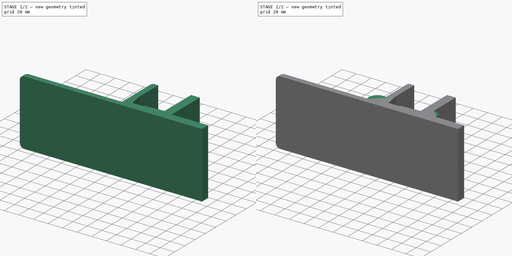
[diagram: build sequence overview — one tinted view per stage of 2, left to right]
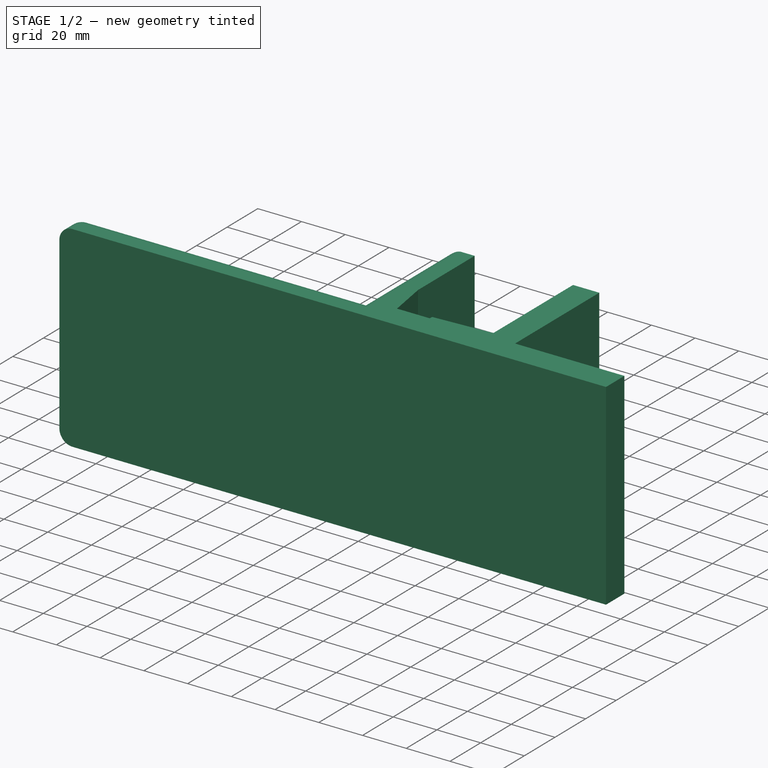
[diagram: stage 1 of 2 — iso view after this stage's code; geometry added in this stage tinted green]
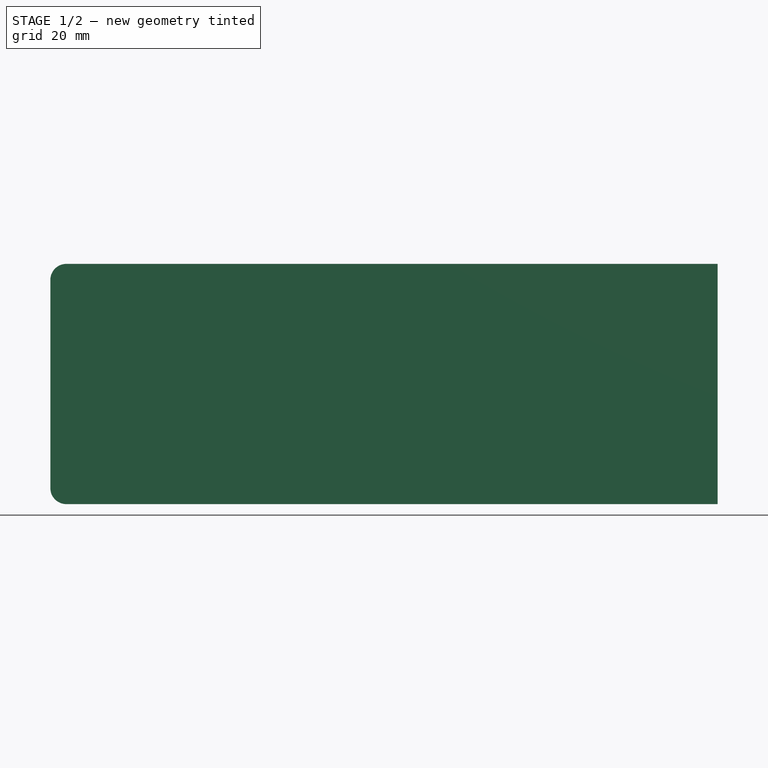
[diagram: stage 1 of 2 — front view after this stage's code; geometry added in this stage tinted green]
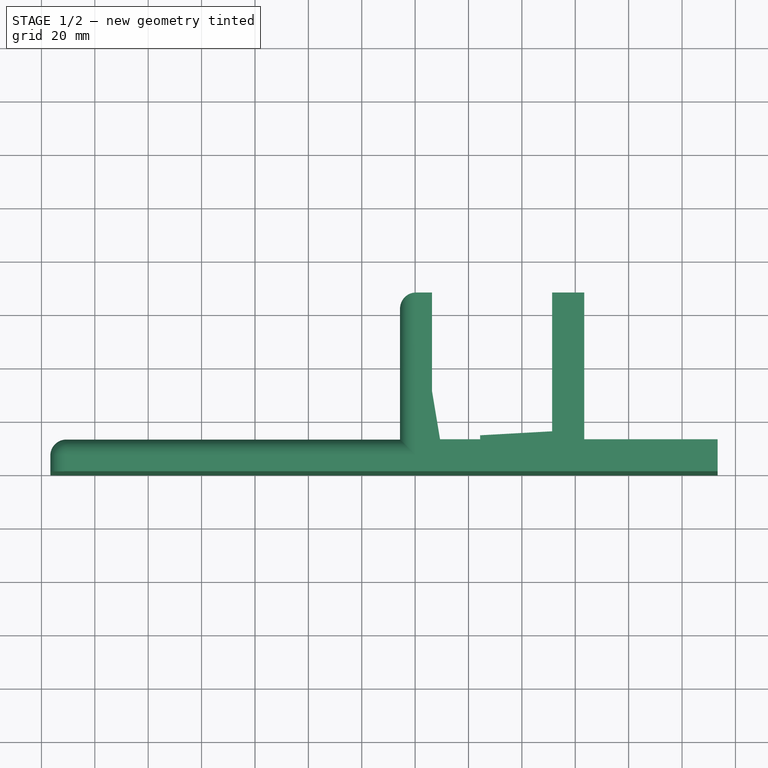
[diagram: stage 1 of 2 — top view after this stage's code; geometry added in this stage tinted green]
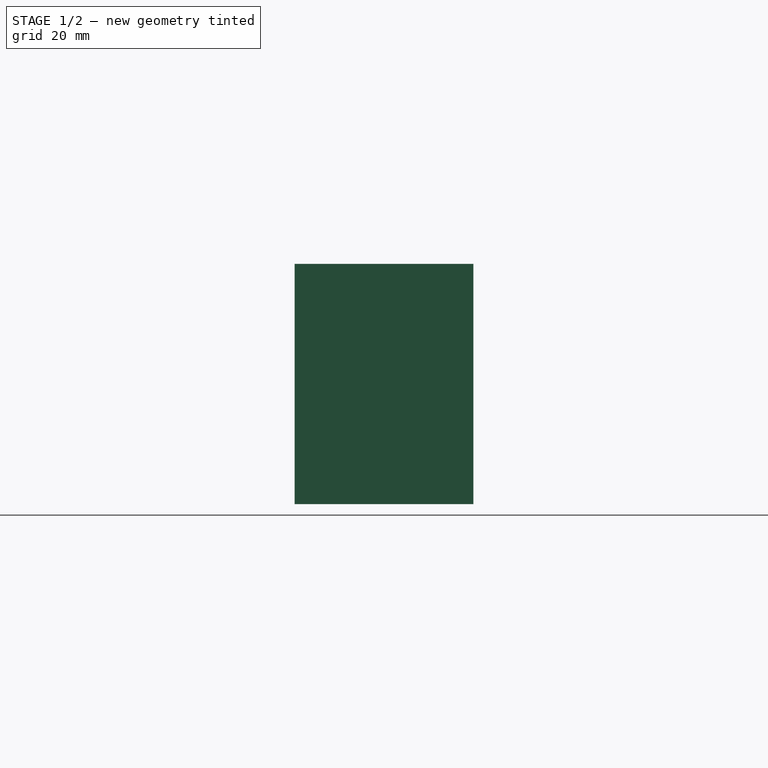
[diagram: stage 1 of 2 — right view after this stage's code; geometry added in this stage tinted green]
FCSTD DOCUMENT  (FreeCAD 1.0R39285 (Git))
Label: tv-legs
License: All rights reserved
LicenseURL: https://en.wikipedia.org/wiki/All_rights_reserved
objects: PartDesign::AdditiveCylinder×2, App::VarSet×1, Sketcher::SketchObject×1, PartDesign::Pad×1, PartDesign::Fillet×1, PartDesign::Body×1
note: 15 computed .brp shape members not serialized (recipe doc carries the construction recipe); baked Part::Feature solids carry a one-line shape summary decoded from their .brp

FEATURE [App::VarSet] VarSet
  Base_HolderHeight = 55
  Base_LegLength = 250
  Base_LegThickness = 12
  Base_RearHeelLength = 50
  Base_TvDepth = 45
FEATURE [Sketcher::SketchObject] Sketch
  ArcFitTolerance = 1e-06
  AttachmentSupport = -> [XY_Plane]
  FullyConstrained = false
  MakeInternals = false
  MapMode = 5
  expr: Constraints[15] = VarSet.Base_HolderHeight
  expr: Constraints[23] = VarSet.Base_LegThickness
  expr: Constraints[24] = VarSet.Base_LegThickness
  expr: Constraints[28] = VarSet.Base_TvDepth
  expr: Constraints[29] = VarSet.Base_RearHeelLength
  expr: Constraints[2] = VarSet.Base_LegLength
  expr: Constraints[7] = VarSet.Base_LegThickness
  sketch-geometry (19):
    g0: LineSegment StartX=-136.66 StartY=0 StartZ=0 EndX=113.34 EndY=0 EndZ=0
    g1: LineSegment StartX=-136.66 StartY=0 StartZ=0 EndX=-136.66 EndY=12 EndZ=0
    g2: LineSegment StartX=113.34 StartY=0 StartZ=0 EndX=113.34 EndY=12 EndZ=0
    g3: LineSegment StartX=-136.66 StartY=12 StartZ=0 EndX=-5.65961 EndY=12 EndZ=0
    g4: LineSegment StartX=6.34039 StartY=30 StartZ=0 EndX=6.34039 EndY=67 EndZ=0
    g5: LineSegment StartX=51.3404 StartY=15 StartZ=0 EndX=51.3404 EndY=67 EndZ=0
    g6: LineSegment StartX=-5.65961 StartY=67 StartZ=0 EndX=-5.65961 EndY=12 EndZ=0
    g7: LineSegment StartX=63.3404 StartY=67 StartZ=0 EndX=63.3404 EndY=12 EndZ=0
    g8: LineSegment StartX=-5.65961 StartY=67 StartZ=0 EndX=6.34039 EndY=67 EndZ=0
    g9: LineSegment StartX=51.3404 StartY=67 StartZ=0 EndX=63.3404 EndY=67 EndZ=0
    g10: LineSegment StartX=63.3404 StartY=12 StartZ=0 EndX=113.34 EndY=12 EndZ=0
    g11: LineSegment StartX=24.3404 StartY=12 StartZ=0 EndX=24.3404 EndY=13.5 EndZ=0
    g12: LineSegment [constr] StartX=6.34039 StartY=12 StartZ=0 EndX=63.3404 EndY=12 EndZ=0
    g13: LineSegment [constr] StartX=51.3404 StartY=12 StartZ=0 EndX=51.3404 EndY=15 EndZ=0
    g14: LineSegment StartX=24.3404 StartY=13.5 StartZ=0 EndX=51.3404 EndY=15 EndZ=0
    g15: LineSegment [constr] StartX=6.34039 StartY=30 StartZ=0 EndX=6.34039 EndY=12 EndZ=0
    g16: GeomPoint [constr] X=9.34039 Y=12 Z=0
    g17: LineSegment StartX=24.3404 StartY=12 StartZ=0 EndX=9.34039 EndY=12 EndZ=0
    g18: LineSegment StartX=9.34039 StartY=12 StartZ=0 EndX=6.34039 EndY=30 EndZ=0
  constraints (51):
    c: PointOnObject(g0,g-1)
    c: PointOnObject(g0,g-1)
    c: DistanceX(g0,g0) = 250
    c: Coincident(g1,g0)
    c: Vertical(g1)
    c: Coincident(g2,g0)
    c: Vertical(g2)
    c: Distance(g1,g1) = 12
    c: Equal(g2,g1)
    c: Coincident(g3,g1)
    c: Horizontal(g3)
    c: Vertical(g4)
    c: Vertical(g5)
    c: Vertical(g6)
    c: Vertical(g7)
    c: DistanceY(g6,g6) = 55
    c: Coincident(g8,g6)
    c: Horizontal(g8)
    c: Coincident(g9,g5)
    c: Horizontal(g9)
    c: Coincident(g8,g4)
    c: Coincident(g9,g7)
    c: Coincident(g3,g6)
    c: Distance(g8,g8) = 12
    c: Distance(g9,g9) = 12
    c: Coincident(g10,g7)
    c: Horizontal(g10)
    c: Coincident(g10,g2)
    c: Distance(g5,g4) = 45
    c: DistanceX(g10,g10) = 50
    c: Distance(g11) = 1.5
    c: Vertical(g11)
    c: Coincident(g12,g7)
    c: Distance(g13) = 3
    c: PointOnObject(g13,g12)
    c: Tangent(g13,g5) = -1.5708
    c: Coincident(g14,g11)
    c: Coincident(g14,g5)
    c: Distance(g11,g4) = 18
    c: Horizontal(g12)
    c: Coincident(g15,g4)
    c: Coincident(g15,g12)
    c: Vertical(g15)
    c: PointOnObject(g16,g12)
    c: Distance(g16,g12) = 3
    c: DistanceY(g12,g4) = 18
    c: Coincident(g17,g11)
    c: Coincident(g17,g16)
    c: Horizontal(g17)
    c: Coincident(g18,g16)
    c: Coincident(g18,g4)
FEATURE [PartDesign::Pad] Pad
  Direction = (0,0,1)
  Length = 90
  Length2 = 10
  Profile = -> Sketch
  ReferenceAxis = -> Sketch [N_Axis]
  Refine = true
  Suppressed = false
  Type = 0
FEATURE [PartDesign::Fillet] Fillet
  Base = -> Pad [Edge5,Edge7,Edge6,Edge1,Edge3,Edge4,Edge9,Edge10]
  BaseFeature = -> Pad
  Radius = 6
  Refine = true
  SupportTransform = false
  Suppressed = false
  UseAllEdges = false
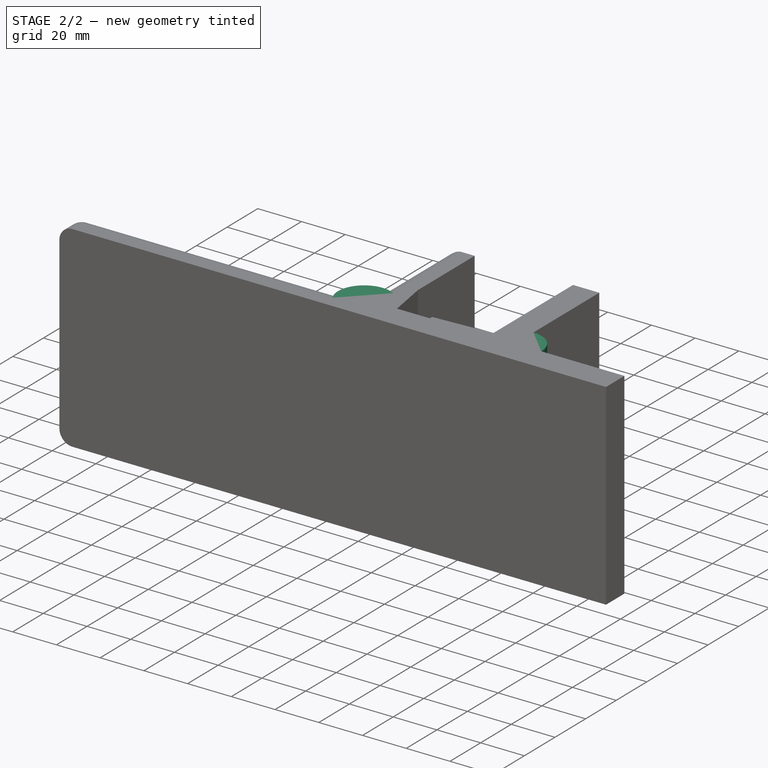
[diagram: stage 2 of 2 — iso view after this stage's code; geometry added in this stage tinted green]
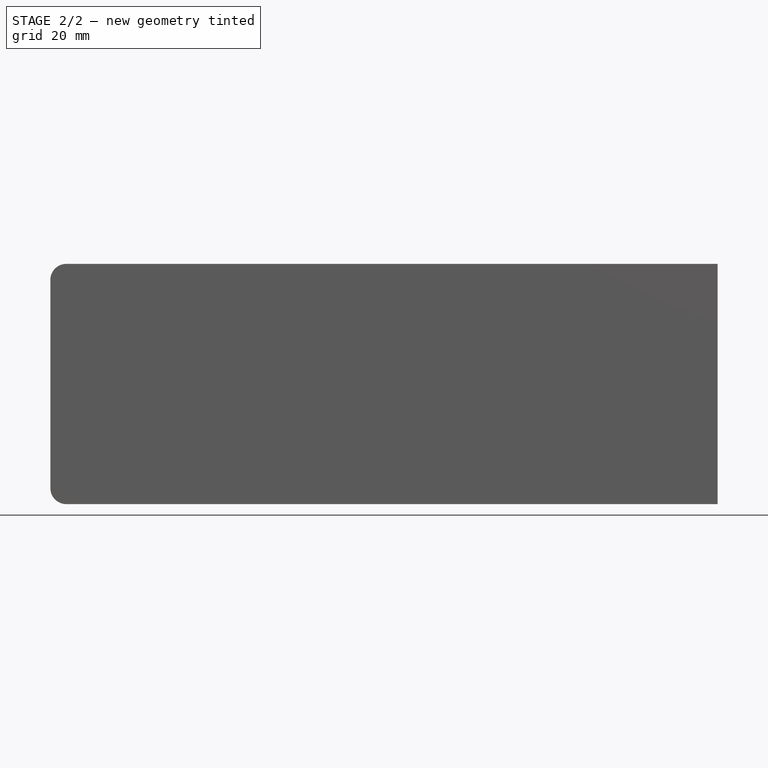
[diagram: stage 2 of 2 — front view after this stage's code; geometry added in this stage tinted green]
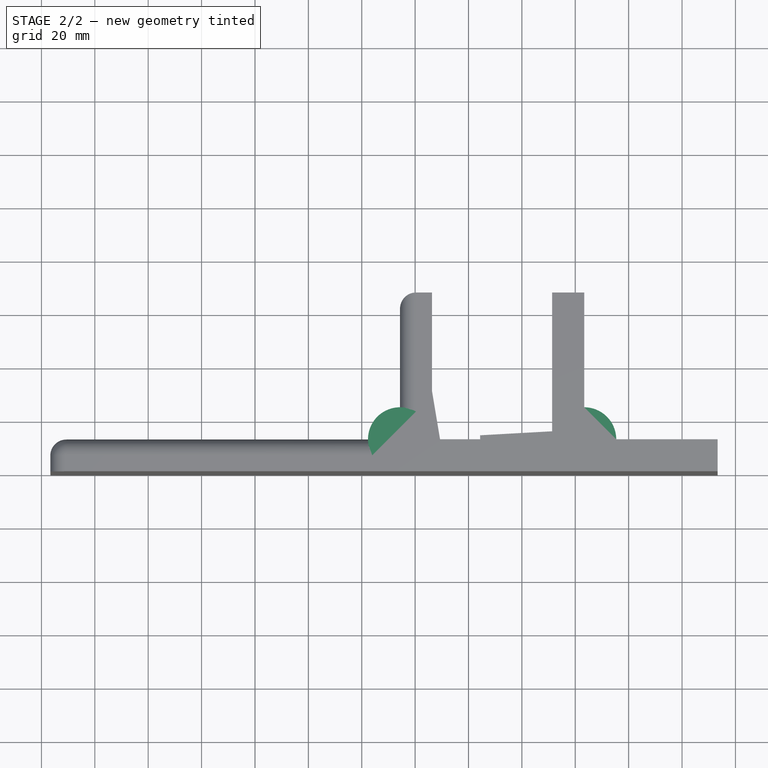
[diagram: stage 2 of 2 — top view after this stage's code; geometry added in this stage tinted green]
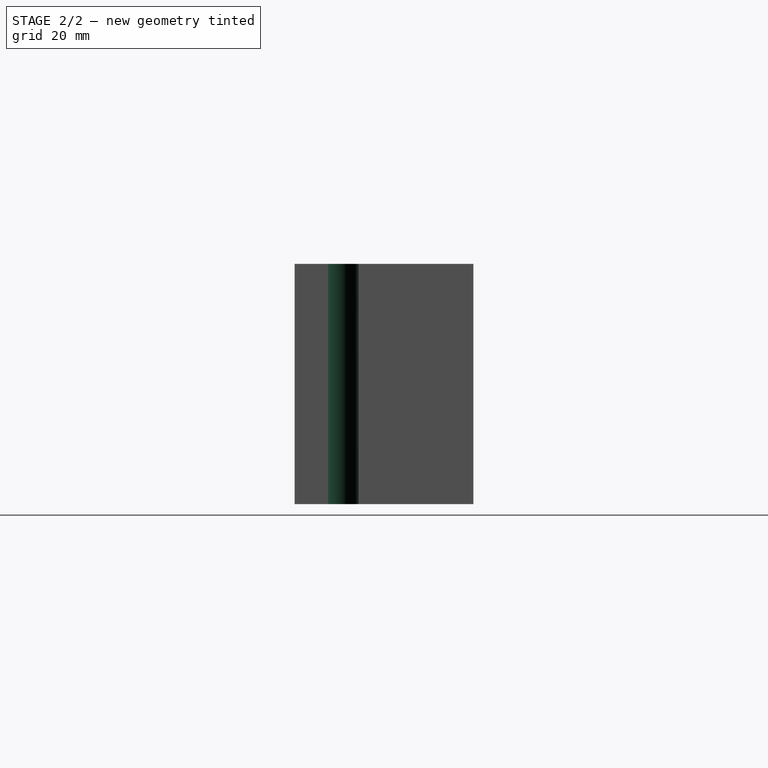
[diagram: stage 2 of 2 — right view after this stage's code; geometry added in this stage tinted green]
FEATURE [PartDesign::AdditiveCylinder] Cylinder
  Angle = 360
  AttacherType = Attacher::AttachEngine3D
  AttachmentOffset = pos=(0,0,-84) rot=(0,0,1;0rad)
  AttachmentSupport = -> [Fillet]
  BaseFeature = -> Fillet
  FirstAngle = 0
  Height = 90
  MapMode = 7
  Placement = pos=(-5.65961,12,90) rot=(0,1,0;3.14159rad)
  Radius = 12
  Refine = true
  SecondAngle = 0
  Suppressed = false
FEATURE [PartDesign::AdditiveCylinder] Cylinder001
  Angle = 360
  AttacherType = Attacher::AttachEngine3D
  AttachmentOffset = pos=(0,0,-90) rot=(0,0,1;0rad)
  AttachmentSupport = -> [Cylinder]
  BaseFeature = -> Cylinder
  FirstAngle = 0
  Height = 90
  MapMode = 7
  Placement = pos=(63.3404,12,90) rot=(0,1,0;3.14159rad)
  Radius = 12
  Refine = true
  SecondAngle = 0
  Suppressed = false
FEATURE [PartDesign::Body] Body
  AllowCompound = false
  Group = -> [Sketch,Pad,Fillet,Cylinder,Cylinder001]
  Origin = -> Origin
  Tip = -> Cylinder001
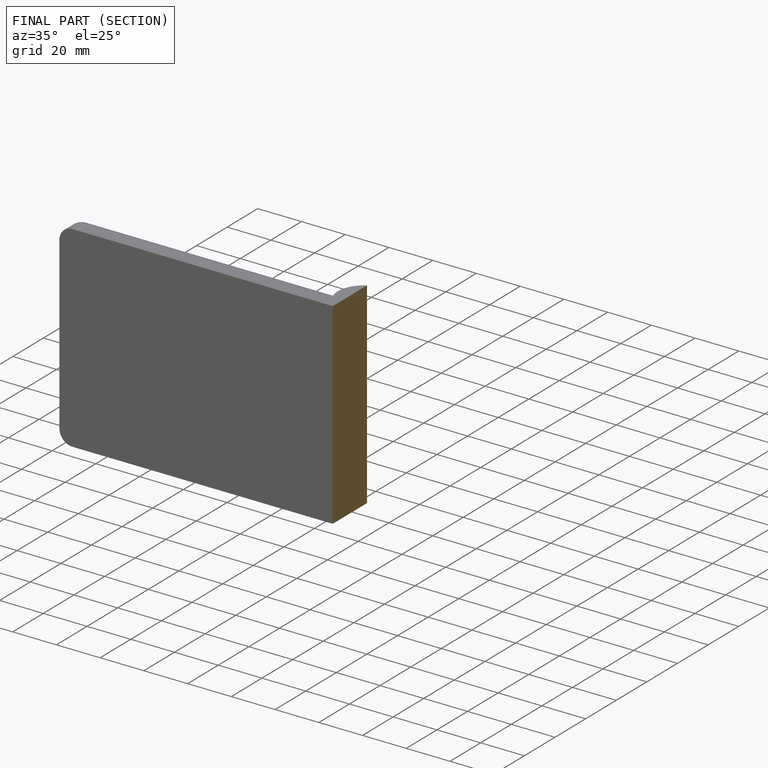
[diagram: finished part — half-section view (interior)]
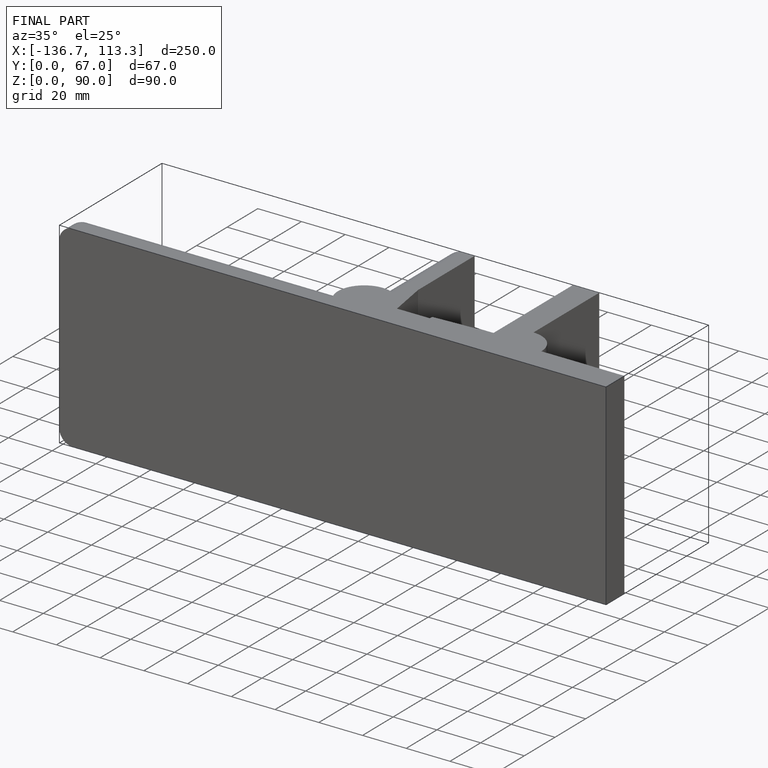
[diagram: finished part — iso view with bounding-box wireframe]
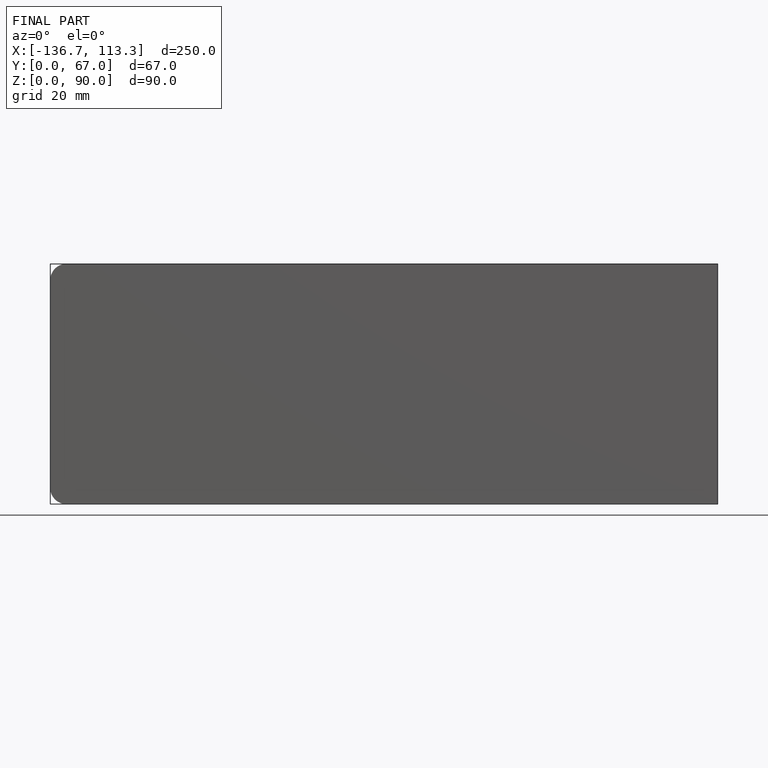
[diagram: finished part — front view with bounding-box wireframe]
